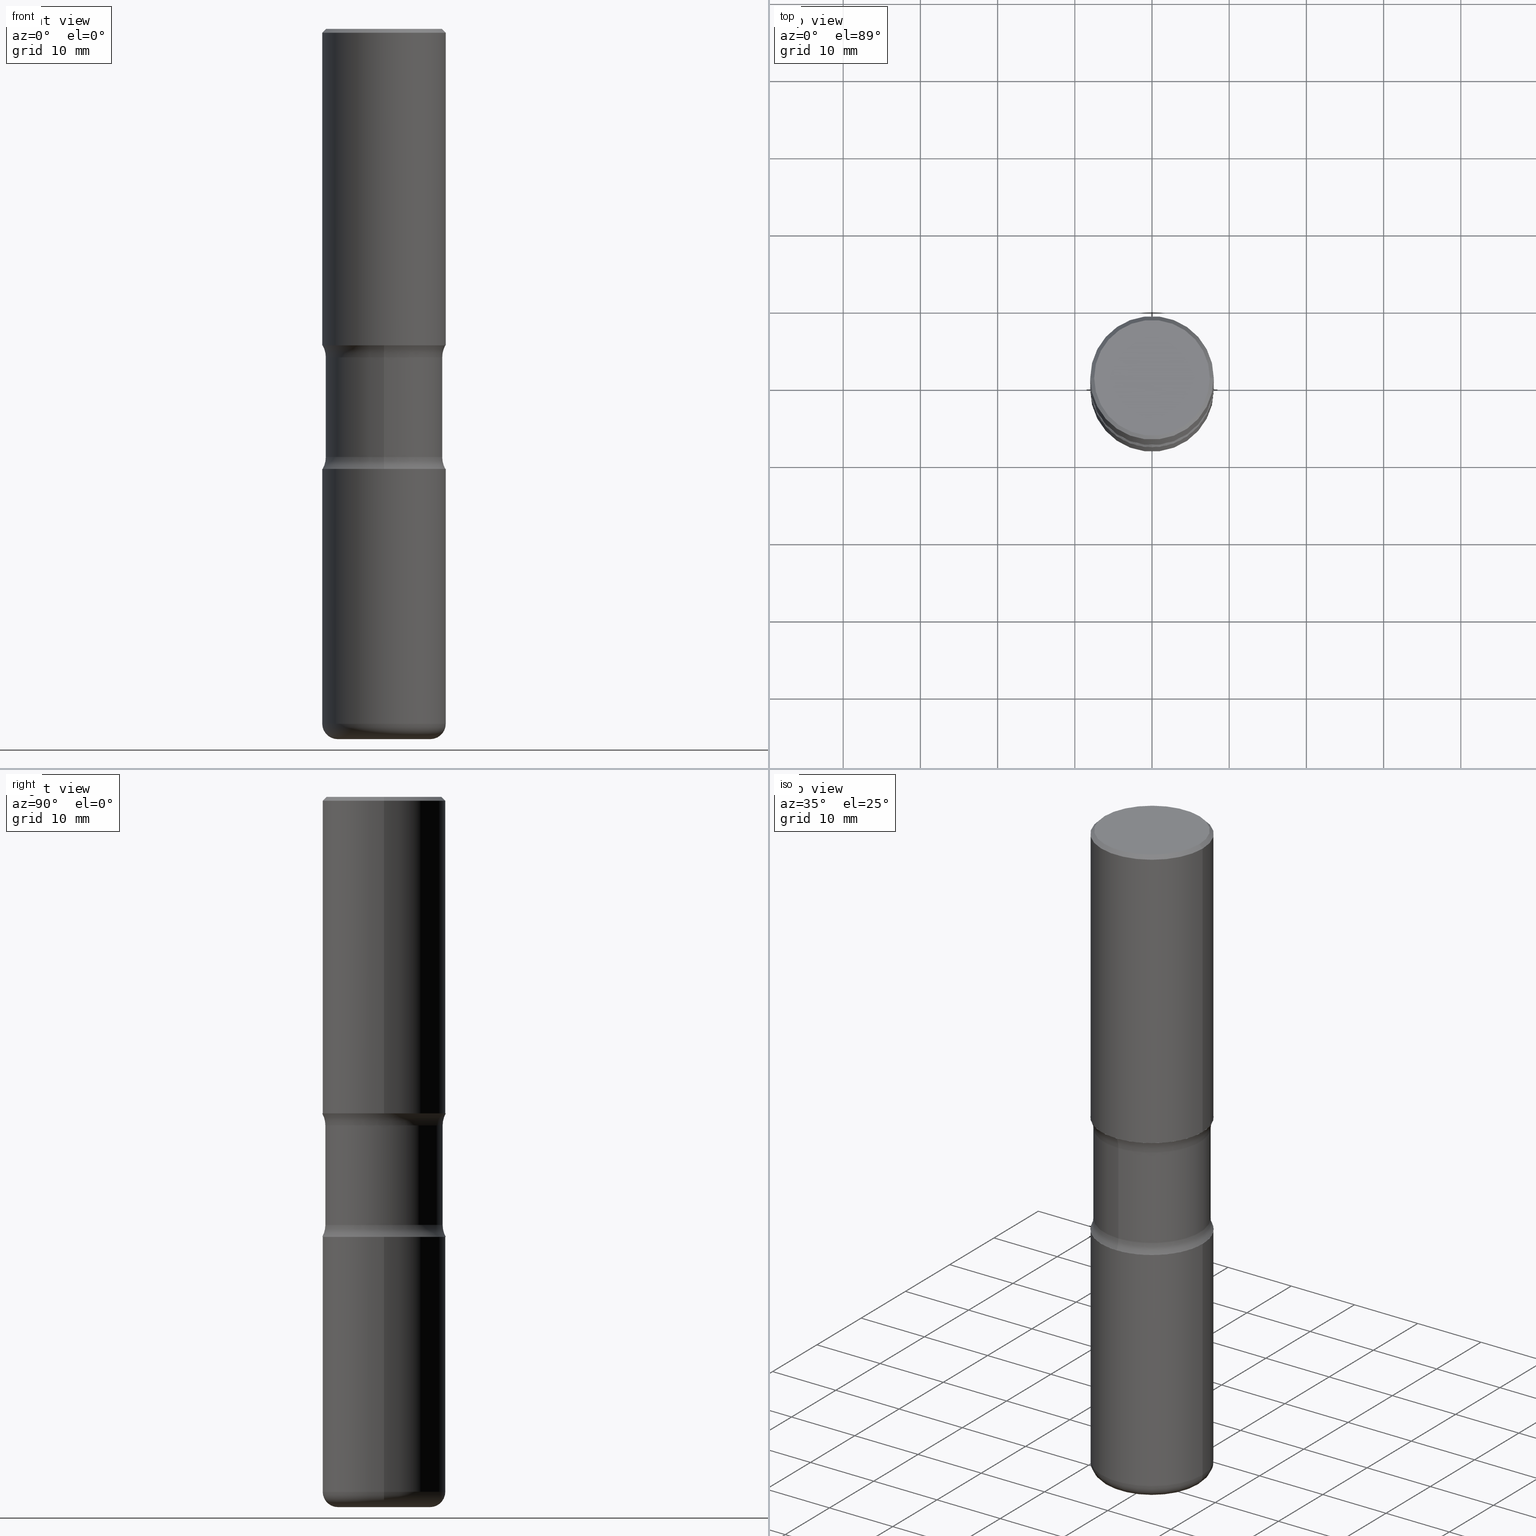
[diagram: canonical four-view strip — front | top / right | iso, engineering-drawing reading convention]
A machine part, canonical four-view strip (front | top / right | iso — engineering-drawing reading convention). The complete STEP part file that produces these views, byte-faithful:
ISO-10303-21;
HEADER;
FILE_DESCRIPTION (( 'STEP AP203' ),
    '1' );
FILE_NAME ('44981.STEP',
    '2024-03-02T04:17:54',
    ( '' ),
    ( '' ),
    'SwSTEP 2.0',
    'SolidWorks 2023',
    '' );
FILE_SCHEMA (( 'CONFIG_CONTROL_DESIGN' ));
ENDSEC;

DATA;
#1 = PRODUCT_DEFINITION ( 'UNKNOWN', '', #94, #376 ) ;
#2 = ORIENTED_EDGE ( 'NONE', *, *, #276, .T. ) ;
#3 = EDGE_LOOP ( 'NONE', ( #349, #16, #2, #527 ) ) ;
#4 = COORDINATED_UNIVERSAL_TIME_OFFSET ( 5, 0, .BEHIND. ) ;
#5 = EDGE_CURVE ( 'NONE', #399, #355, #446, .T. ) ;
#6 = ORIENTED_EDGE ( 'NONE', *, *, #459, .F. ) ;
#7 = AXIS2_PLACEMENT_3D ( 'NONE', #534, #195, #457 ) ;
#8 = CIRCLE ( 'NONE', #445, 0.3149500000000001743 ) ;
#9 = ORIENTED_EDGE ( 'NONE', *, *, #543, .F. ) ;
#10 = DIRECTION ( 'NONE',  ( 2.459321926164491276E-29, -3.471642882562086921E-15, -1.000000000000000000 ) ) ;
#11 = CARTESIAN_POINT ( 'NONE',  ( 4.890937612370289799E-31, -6.982962677686315028E-17, -0.02000000000000006981 ) ) ;
#12 = EDGE_LOOP ( 'NONE', ( #361, #110, #535, #411 ) ) ;
#13 = CARTESIAN_POINT ( 'NONE',  ( -0.3149500000000000077, 2.129454468560426573E-15, -0.02000000000000006981 ) ) ;
#14 = CARTESIAN_POINT ( 'NONE',  ( -0.3149500000000000077, 2.129454468560426573E-15, -0.02000000000000006981 ) ) ;
#15 = FACE_OUTER_BOUND ( 'NONE', #270, .T. ) ;
#16 = ORIENTED_EDGE ( 'NONE', *, *, #127, .T. ) ;
#17 = COORDINATED_UNIVERSAL_TIME_OFFSET ( 5, 0, .BEHIND. ) ;
#18 = EDGE_CURVE ( 'NONE', #180, #232, #198, .T. ) ;
#19 = AXIS2_PLACEMENT_3D ( 'NONE', #532, #147, #423 ) ;
#20 = DIRECTION ( 'NONE',  ( -2.445468806185136877E-29, 3.491481338843145188E-15, 1.000000000000000000 ) ) ;
#21 = DATE_AND_TIME ( #69, #293 ) ;
#22 = FACE_OUTER_BOUND ( 'NONE', #176, .T. ) ;
#23 = FACE_OUTER_BOUND ( 'NONE', #320, .T. ) ;
#24 = PERSON_AND_ORGANIZATION_ROLE ( 'creator' ) ;
#25 = ADVANCED_FACE ( 'NONE', ( #109 ), #286, .T. ) ;
#26 = CARTESIAN_POINT ( 'NONE',  ( -0.2949499999999999345, 2.094539655171995318E-15, 1.280553747028670770E-17 ) ) ;
#27 = SECURITY_CLASSIFICATION_LEVEL ( 'unclassified' ) ;
#28 = AXIS2_PLACEMENT_3D ( 'NONE', #250, #190, #103 ) ;
#29 = UNCERTAINTY_MEASURE_WITH_UNIT (LENGTH_MEASURE( 1.000000000000000082E-05 ), #278, 'distance_accuracy_value', 'NONE');
#30 = AXIS2_PLACEMENT_3D ( 'NONE', #177, #85, #35 ) ;
#31 = ORIENTED_EDGE ( 'NONE', *, *, #173, .F. ) ;
#32 = APPROVAL ( #344, 'UNSPECIFIED' ) ;
#33 = FACE_OUTER_BOUND ( 'NONE', #391, .T. ) ;
#34 = CYLINDRICAL_SURFACE ( 'NONE', #341, 0.3149500000000000632 ) ;
#35 = DIRECTION ( 'NONE',  ( 1.000000000000000000, -6.982962677686266711E-15, 4.883557194083112901E-29 ) ) ;
#36 = VECTOR ( 'NONE', #20, 39.37007874015748143 ) ;
#37 = AXIS2_PLACEMENT_3D ( 'NONE', #133, #401, #441 ) ;
#38 = CARTESIAN_POINT ( 'NONE',  ( 8.857732562883184381E-29, -1.264649455742375708E-14, -3.622100000000000097 ) ) ;
#39 = DIRECTION ( 'NONE',  ( 2.459321926164491276E-29, -3.471642882562086527E-15, -1.000000000000000000 ) ) ;
#40 = DIRECTION ( 'NONE',  ( -1.000000000000000000, 7.105427357600995548E-15, 0.000000000000000000 ) ) ;
#41 = DIRECTION ( 'NONE',  ( -6.982962677686267499E-15, -1.000000000000000000, 0.000000000000000000 ) ) ;
#42 = AXIS2_PLACEMENT_3D ( 'NONE', #387, #73, #209 ) ;
#43 = AXIS2_PLACEMENT_3D ( 'NONE', #475, #351, #40 ) ;
#44 = DIRECTION ( 'NONE',  ( -2.445468806185136597E-29, 3.491481338843145583E-15, 1.000000000000000000 ) ) ;
#45 = APPLICATION_CONTEXT ( 'configuration controlled 3d designs of mechanical parts and assemblies' ) ;
#46 = CARTESIAN_POINT ( 'NONE',  ( 3.947475746944049633E-29, -5.635949177160607736E-15, -1.614200000000000745 ) ) ;
#47 = EDGE_CURVE ( 'NONE', #355, #417, #544, .T. ) ;
#48 = PERSON_AND_ORGANIZATION_ROLE ( 'creator' ) ;
#49 = EDGE_CURVE ( 'NONE', #555, #170, #301, .T. ) ;
#50 = CARTESIAN_POINT ( 'NONE',  ( -0.3149500000000000632, 2.237854346276435985E-15, -1.549218606675782956E-29 ) ) ;
#51 = ORIENTED_EDGE ( 'NONE', *, *, #497, .F. ) ;
#52 = VECTOR ( 'NONE', #339, 39.37007874015748143 ) ;
#53 = DIRECTION ( 'NONE',  ( -2.445468806185136597E-29, 3.491481338843145583E-15, 1.000000000000000000 ) ) ;
#54 = CIRCLE ( 'NONE', #296, 0.2949499999999999345 ) ;
#55 = CARTESIAN_POINT ( 'NONE',  ( -0.3149500000000001743, -7.865619778000917844E-15, -2.244100000000000872 ) ) ;
#56 = DIRECTION ( 'NONE',  ( -2.445468806185136597E-29, 3.491481338843145583E-15, 1.000000000000000000 ) ) ;
#57 = EDGE_CURVE ( 'NONE', #354, #141, #425, .T. ) ;
#58 = DIRECTION ( 'NONE',  ( 1.000000000000000000, -6.982962677686265922E-15, 0.000000000000000000 ) ) ;
#59 = ORIENTED_EDGE ( 'NONE', *, *, #321, .T. ) ;
#60 = ORIENTED_EDGE ( 'NONE', *, *, #57, .T. ) ;
#61 = SHAPE_DEFINITION_REPRESENTATION ( #131, #275 ) ;
#62 = ADVANCED_FACE ( 'NONE', ( #22 ), #505, .T. ) ;
#63 = AXIS2_PLACEMENT_3D ( 'NONE', #372, #284, #531 ) ;
#64 = CIRCLE ( 'NONE', #368, 0.2989999999999999325 ) ;
#65 = DIRECTION ( 'NONE',  ( 2.459321926164491276E-29, -3.471642882562086527E-15, -1.000000000000000000 ) ) ;
#66 = PRODUCT_RELATED_PRODUCT_CATEGORY ( 'detail', '', ( #222 ) ) ;
#67 = DIRECTION ( 'NONE',  ( -1.000000000000000000, 6.982962677686266711E-15, 0.000000000000000000 ) ) ;
#68 = EDGE_CURVE ( 'NONE', #90, #417, #75, .T. ) ;
#69 = CALENDAR_DATE ( 2024, 1, 3 ) ;
#70 = DIRECTION ( 'NONE',  ( -2.445468806185136597E-29, 3.491481338843145583E-15, 1.000000000000000000 ) ) ;
#71 = EDGE_LOOP ( 'NONE', ( #440, #31, #318, #59 ) ) ;
#72 = DATE_TIME_ROLE ( 'creation_date' ) ;
#73 = DIRECTION ( 'NONE',  ( 2.459321926164491276E-29, -3.471642882562086527E-15, -1.000000000000000000 ) ) ;
#74 = CARTESIAN_POINT ( 'NONE',  ( -2.051288901333598203E-15, -0.2990000000000125335, -3.622099999999999653 ) ) ;
#75 = LINE ( 'NONE', #433, #36 ) ;
#76 = VECTOR ( 'NONE', #10, 39.37007874015748143 ) ;
#77 = ORIENTED_EDGE ( 'NONE', *, *, #252, .T. ) ;
#78 = APPROVAL_PERSON_ORGANIZATION ( #468, #32, #465 ) ;
#79 = DIRECTION ( 'NONE',  ( 6.982962677686265922E-15, 1.000000000000000000, -3.471642882562086527E-15 ) ) ;
#80 = TOROIDAL_SURFACE ( 'NONE', #524, 0.4239999999999999880, 0.1250000000000000555 ) ;
#81 = CIRCLE ( 'NONE', #412, 0.3149500000000001743 ) ;
#82 = AXIS2_PLACEMENT_3D ( 'NONE', #449, #146, #373 ) ;
#83 = ORIENTED_EDGE ( 'NONE', *, *, #193, .T. ) ;
#84 = FACE_OUTER_BOUND ( 'NONE', #71, .T. ) ;
#85 = DIRECTION ( 'NONE',  ( -2.445468806185136597E-29, 3.491481338843145583E-15, 1.000000000000000000 ) ) ;
#86 = CARTESIAN_POINT ( 'NONE',  ( 2.960776175339016781E-15, 0.4239999999999940483, -1.675299079371135758 ) ) ;
#87 = ORIENTED_EDGE ( 'NONE', *, *, #304, .T. ) ;
#88 = DIRECTION ( 'NONE',  ( 2.459321926164491276E-29, -3.471642882562086527E-15, -1.000000000000000000 ) ) ;
#89 = DIRECTION ( 'NONE',  ( 2.459321926164491276E-29, -3.471642882562086527E-15, -1.000000000000000000 ) ) ;
#90 = VERTEX_POINT ( 'NONE', #157 ) ;
#91 = ADVANCED_FACE ( 'NONE', ( #500 ), #113, .F. ) ;
#92 = CLOSED_SHELL ( 'NONE', ( #25, #528, #203, #509, #443, #215 ) ) ;
#93 = AXIS2_PLACEMENT_3D ( 'NONE', #381, #243, #58 ) ;
#94 = PRODUCT_DEFINITION_FORMATION_WITH_SPECIFIED_SOURCE ( 'ANY', '', #222, .NOT_KNOWN. ) ;
#95 = FACE_OUTER_BOUND ( 'NONE', #479, .T. ) ;
#96 = EDGE_CURVE ( 'NONE', #559, #492, #122, .T. ) ;
#97 = DIRECTION ( 'NONE',  ( 2.445468806185136597E-29, -3.491481338843145583E-15, -1.000000000000000000 ) ) ;
#98 = CARTESIAN_POINT ( 'NONE',  ( 0.000000000000000000, 0.000000000000000000, 0.000000000000000000 ) ) ;
#99 = ORIENTED_EDGE ( 'NONE', *, *, #49, .F. ) ;
#100 = ORIENTED_EDGE ( 'NONE', *, *, #18, .T. ) ;
#101 = PERSON_AND_ORGANIZATION ( #398, #369 ) ;
#102 = DIRECTION ( 'NONE',  ( -2.445468806185136597E-29, 3.491481338843145583E-15, 1.000000000000000000 ) ) ;
#103 = DIRECTION ( 'NONE',  ( -6.982962677686265922E-15, -1.000000000000000000, 3.471642882562086921E-15 ) ) ;
#104 = CLOSED_SHELL ( 'NONE', ( #385, #402, #289, #212, #353, #363 ) ) ;
#105 = VERTEX_POINT ( 'NONE', #245 ) ;
#106 = CARTESIAN_POINT ( 'NONE',  ( 8.857732562883184381E-29, -1.264649455742375708E-14, -3.622100000000000097 ) ) ;
#107 = AXIS2_PLACEMENT_3D ( 'NONE', #181, #39, #221 ) ;
#108 = DIRECTION ( 'NONE',  ( 1.000000000000000000, -6.982962677686265922E-15, 4.876176775795935232E-29 ) ) ;
#109 = FACE_OUTER_BOUND ( 'NONE', #263, .T. ) ;
#110 = ORIENTED_EDGE ( 'NONE', *, *, #5, .T. ) ;
#111 = FACE_OUTER_BOUND ( 'NONE', #3, .T. ) ;
#112 = CARTESIAN_POINT ( 'NONE',  ( 0.2949499999999999345, -2.127023677808860075E-15, 1.280553747031587399E-17 ) ) ;
#113 = PLANE ( 'NONE',  #28 ) ;
#114 = EDGE_CURVE ( 'NONE', #141, #354, #356, .T. ) ;
#115 = DIRECTION ( 'NONE',  ( 2.459321926164491276E-29, -3.471642882562086527E-15, -1.000000000000000000 ) ) ;
#116 = CLOSED_SHELL ( 'NONE', ( #508, #272, #223, #336, #265, #91, #470, #62 ) ) ;
#117 = AXIS2_PLACEMENT_3D ( 'NONE', #183, #44, #267 ) ;
#118 = APPROVAL_PERSON_ORGANIZATION ( #101, #307, #419 ) ;
#119 = FACE_OUTER_BOUND ( 'NONE', #516, .T. ) ;
#120 = DIRECTION ( 'NONE',  ( 1.000000000000000000, -6.982962677686266711E-15, 0.000000000000000000 ) ) ;
#121 = PERSON_AND_ORGANIZATION_ROLE ( 'classification_officer' ) ;
#122 = CIRCLE ( 'NONE', #165, 0.1250000000000000278 ) ;
#123 = CIRCLE ( 'NONE', #432, 0.2362500000000002098 ) ;
#124 = ORIENTED_EDGE ( 'NONE', *, *, #49, .T. ) ;
#125 = VERTEX_POINT ( 'NONE', #206 ) ;
#126 = CARTESIAN_POINT ( 'NONE',  ( 0.000000000000000000, 0.000000000000000000, 0.000000000000000000 ) ) ;
#127 = EDGE_CURVE ( 'NONE', #180, #170, #142, .T. ) ;
#128 = EDGE_LOOP ( 'NONE', ( #309, #523 ) ) ;
#129 = FACE_OUTER_BOUND ( 'NONE', #452, .T. ) ;
#130 = CIRCLE ( 'NONE', #271, 0.07869999999999970075 ) ;
#131 = PRODUCT_DEFINITION_SHAPE ( 'NONE', 'NONE',  #1 ) ;
#132 = ORIENTED_EDGE ( 'NONE', *, *, #478, .T. ) ;
#133 = CARTESIAN_POINT ( 'NONE',  ( 3.947475746944049633E-29, -5.635949177160607736E-15, -1.614200000000000745 ) ) ;
#134 = EDGE_LOOP ( 'NONE', ( #408, #145, #367, #135 ) ) ;
#135 = ORIENTED_EDGE ( 'NONE', *, *, #114, .T. ) ;
#136 = EDGE_LOOP ( 'NONE', ( #277, #421, #393, #481 ) ) ;
#137 = CONICAL_SURFACE ( 'NONE', #460, 0.3149500000000000077, 0.7853981633974477239 ) ;
#138 = AXIS2_PLACEMENT_3D ( 'NONE', #11, #97, #493 ) ;
#139 = ORIENTED_EDGE ( 'NONE', *, *, #543, .T. ) ;
#140 = CARTESIAN_POINT ( 'NONE',  ( -2.160713844398089720E-15, -0.3149500000000080013, -2.244099999999999984 ) ) ;
#141 = VERTEX_POINT ( 'NONE', #337 ) ;
#142 = LINE ( 'NONE', #239, #52 ) ;
#143 = LENGTH_MEASURE_WITH_UNIT ( LENGTH_MEASURE( 0.02539999999999999897 ), #489 );
#144 = CARTESIAN_POINT ( 'NONE',  ( 0.3149500000000001743, -7.835233272497899184E-15, -1.614200000000000745 ) ) ;
#145 = ORIENTED_EDGE ( 'NONE', *, *, #427, .F. ) ;
#146 = DIRECTION ( 'NONE',  ( 0.000000000000000000, 0.000000000000000000, 1.000000000000000000 ) ) ;
#147 = DIRECTION ( 'NONE',  ( 2.459321926164491276E-29, -3.471642882562086527E-15, -1.000000000000000000 ) ) ;
#148 = FACE_OUTER_BOUND ( 'NONE', #483, .T. ) ;
#149 = ORIENTED_EDGE ( 'NONE', *, *, #297, .F. ) ;
#150 = DIRECTION ( 'NONE',  ( -2.445468806185136597E-29, 3.491481338843145583E-15, 1.000000000000000000 ) ) ;
#151 = AXIS2_PLACEMENT_3D ( 'NONE', #46, #187, #364 ) ;
#152 = DIRECTION ( 'NONE',  ( 2.438088387897960049E-29, -3.491481338843145188E-15, -1.000000000000000000 ) ) ;
#153 = CARTESIAN_POINT ( 'NONE',  ( 0.000000000000000000, 0.000000000000000000, 0.000000000000000000 ) ) ;
#154 = CARTESIAN_POINT ( 'NONE',  ( 3.947475746944049633E-29, -5.635949177160607736E-15, -1.614200000000000745 ) ) ;
#155 = EDGE_CURVE ( 'NONE', #266, #555, #418, .T. ) ;
#156 = FACE_OUTER_BOUND ( 'NONE', #134, .T. ) ;
#157 = CARTESIAN_POINT ( 'NONE',  ( 0.3149500000000000077, -1.457099907139409361E-14, -3.543400000000000993 ) ) ;
#158 = APPROVAL_DATE_TIME ( #546, #207 ) ;
#159 = DIRECTION ( 'NONE',  ( 1.000000000000000000, -6.982962677686266711E-15, 0.000000000000000000 ) ) ;
#160 = DIRECTION ( 'NONE',  ( 1.000000000000000000, -6.982962677686266711E-15, 4.876176775795936353E-29 ) ) ;
#161 = CIRCLE ( 'NONE', #43, 0.07869999999999970075 ) ;
#162 = LINE ( 'NONE', #74, #179 ) ;
#163 = DIRECTION ( 'NONE',  ( 2.459321926164491276E-29, -3.471642882562086921E-15, -1.000000000000000000 ) ) ;
#164 = ORIENTED_EDGE ( 'NONE', *, *, #550, .T. ) ;
#165 = AXIS2_PLACEMENT_3D ( 'NONE', #540, #280, #199 ) ;
#166 = AXIS2_PLACEMENT_3D ( 'NONE', #98, #102, #108 ) ;
#167 = CC_DESIGN_SECURITY_CLASSIFICATION ( #485, ( #94 ) ) ;
#168 = EDGE_CURVE ( 'NONE', #192, #105, #383, .T. ) ;
#169 = CARTESIAN_POINT ( 'NONE',  ( 2.960776175339029797E-15, 0.4239999999999923275, -2.183000920628868968 ) ) ;
#170 = VERTEX_POINT ( 'NONE', #498 ) ;
#171 = CC_DESIGN_PERSON_AND_ORGANIZATION_ASSIGNMENT ( #213, #121, ( #485 ) ) ;
#172 = FACE_OUTER_BOUND ( 'NONE', #12, .T. ) ;
#173 = EDGE_CURVE ( 'NONE', #403, #559, #346, .T. ) ;
#174 = CARTESIAN_POINT ( 'NONE',  ( 5.337614242394174202E-29, -7.623119088468014840E-15, -2.183000920628867636 ) ) ;
#175 = CARTESIAN_POINT ( 'NONE',  ( 1.470718031460110537E-28, -4.269752447073433290E-15, -3.622100000000000541 ) ) ;
#176 = EDGE_LOOP ( 'NONE', ( #240, #235, #323, #51 ) ) ;
#177 = CARTESIAN_POINT ( 'NONE',  ( 8.665274167836413975E-29, -1.237171497605680374E-14, -3.543400000000000993 ) ) ;
#178 = DIRECTION ( 'NONE',  ( 6.982962677686264344E-15, 1.000000000000000000, -3.469564049740291192E-15 ) ) ;
#179 = VECTOR ( 'NONE', #163, 39.37007874015748143 ) ;
#180 = VERTEX_POINT ( 'NONE', #112 ) ;
#181 = CARTESIAN_POINT ( 'NONE',  ( 4.089011972234947425E-29, -5.860559604801939895E-15, -1.675299079371134425 ) ) ;
#182 = DIRECTION ( 'NONE',  ( -6.982962677686266711E-15, -1.000000000000000000, 3.491481338843145583E-15 ) ) ;
#183 = CARTESIAN_POINT ( 'NONE',  ( 8.665274167836413975E-29, -1.237171497605680374E-14, -3.543400000000000993 ) ) ;
#184 = MANIFOLD_SOLID_BREP ( 'Body-Move/Copy2[4]', #116 ) ;
#185 = DIRECTION ( 'NONE',  ( -2.445468806185136877E-29, 3.491481338843145188E-15, 1.000000000000000000 ) ) ;
#186 = ORIENTED_EDGE ( 'NONE', *, *, #537, .T. ) ;
#187 = DIRECTION ( 'NONE',  ( 2.459321926164490715E-29, -3.471642882562086921E-15, -1.000000000000000000 ) ) ;
#188 = DIRECTION ( 'NONE',  ( 6.982962677686265922E-15, 1.000000000000000000, -3.471642882562086527E-15 ) ) ;
#189 = AXIS2_PLACEMENT_3D ( 'NONE', #220, #89, #178 ) ;
#190 = DIRECTION ( 'NONE',  ( -2.459321926164490715E-29, 3.471642882562086921E-15, 1.000000000000000000 ) ) ;
#191 = PERSON_AND_ORGANIZATION ( #398, #369 ) ;
#192 = VERTEX_POINT ( 'NONE', #541 ) ;
#193 = EDGE_CURVE ( 'NONE', #313, #266, #319, .T. ) ;
#194 = CARTESIAN_POINT ( 'NONE',  ( 5.487876547960068115E-29, -7.835233272497907073E-15, -2.244100000000000872 ) ) ;
#195 = DIRECTION ( 'NONE',  ( 2.459321926164491276E-29, -3.471642882562086527E-15, -1.000000000000000000 ) ) ;
#196 = ORIENTED_EDGE ( 'NONE', *, *, #96, .T. ) ;
#197 = CARTESIAN_POINT ( 'NONE',  ( 0.2362500000000002098, -1.429621949002714027E-14, -3.622100000000000097 ) ) ;
#198 = CIRCLE ( 'NONE', #502, 0.2949499999999999345 ) ;
#199 = DIRECTION ( 'NONE',  ( 6.860497997771532351E-15, 1.000000000000000000, 0.000000000000000000 ) ) ;
#200 = EDGE_CURVE ( 'NONE', #232, #555, #326, .T. ) ;
#201 = AXIS2_PLACEMENT_3D ( 'NONE', #375, #536, #416 ) ;
#202 = CALENDAR_DATE ( 2024, 1, 3 ) ;
#203 = ADVANCED_FACE ( 'NONE', ( #148 ), #137, .T. ) ;
#204 = CARTESIAN_POINT ( 'NONE',  ( 3.938749666669054073E-29, -5.648445420772047662E-15, -1.614200000000000745 ) ) ;
#205 = FACE_OUTER_BOUND ( 'NONE', #448, .T. ) ;
#206 = CARTESIAN_POINT ( 'NONE',  ( -2.106001372865876107E-15, -0.2990000000000057612, -1.675299079371133315 ) ) ;
#207 = APPROVAL ( #389, 'UNSPECIFIED' ) ;
#208 = CALENDAR_DATE ( 2024, 1, 3 ) ;
#209 = DIRECTION ( 'NONE',  ( 6.982962677686266711E-15, 1.000000000000000000, -3.654646145370253678E-15 ) ) ;
#210 = PERSON_AND_ORGANIZATION ( #398, #369 ) ;
#211 = DIRECTION ( 'NONE',  ( 6.982962677686264344E-15, 1.000000000000000000, -3.469564049740290403E-15 ) ) ;
#212 = ADVANCED_FACE ( 'NONE', ( #119 ), #217, .T. ) ;
#213 = PERSON_AND_ORGANIZATION ( #398, #369 ) ;
#214 = AXIS2_PLACEMENT_3D ( 'NONE', #494, #152, #362 ) ;
#215 = ADVANCED_FACE ( 'NONE', ( #23 ), #34, .T. ) ;
#216 = FACE_OUTER_BOUND ( 'NONE', #371, .T. ) ;
#217 = TOROIDAL_SURFACE ( 'NONE', #282, 0.2362500000000001821, 0.07869999999999965912 ) ;
#218 = CIRCLE ( 'NONE', #302, 0.2989999999999998770 ) ;
#219 = CARTESIAN_POINT ( 'NONE',  ( 8.665274167836413975E-29, -1.237171497605680374E-14, -3.543400000000000993 ) ) ;
#220 = CARTESIAN_POINT ( 'NONE',  ( 5.487876547960068115E-29, -7.835233272497907073E-15, -2.244100000000000872 ) ) ;
#221 = DIRECTION ( 'NONE',  ( 6.982962677686266711E-15, 1.000000000000000000, -3.654646145370253678E-15 ) ) ;
#222 = PRODUCT ( '44981', '44981', '', ( #422 ) ) ;
#223 = ADVANCED_FACE ( 'NONE', ( #33 ), #80, .F. ) ;
#224 = CARTESIAN_POINT ( 'NONE',  ( 5.338460655271330823E-29, -7.621906977053098648E-15, -2.183000920628867636 ) ) ;
#225 = AXIS2_PLACEMENT_3D ( 'NONE', #335, #70, #298 ) ;
#226 = CARTESIAN_POINT ( 'NONE',  ( 0.2362500000000001821, -1.402143990866018536E-14, -3.543400000000000993 ) ) ;
#227 = CIRCLE ( 'NONE', #461, 0.3149500000000000077 ) ;
#228 = CIRCLE ( 'NONE', #437, 0.1250000000000000555 ) ;
#229 = ORIENTED_EDGE ( 'NONE', *, *, #321, .F. ) ;
#230 = CYLINDRICAL_SURFACE ( 'NONE', #474, 0.2989999999999998770 ) ;
#231 = LINE ( 'NONE', #306, #506 ) ;
#232 = VERTEX_POINT ( 'NONE', #26 ) ;
#233 =( NAMED_UNIT ( * ) PLANE_ANGLE_UNIT ( ) SI_UNIT ( $, .RADIAN. ) );
#234 = EDGE_CURVE ( 'NONE', #125, #492, #162, .T. ) ;
#235 = ORIENTED_EDGE ( 'NONE', *, *, #450, .T. ) ;
#236 = CC_DESIGN_APPROVAL ( #307, ( #1 ) ) ;
#237 = CARTESIAN_POINT ( 'NONE',  ( -0.3149500000000001743, -6.150350556922980531E-16, -1.614200000000000745 ) ) ;
#238 = AXIS2_PLACEMENT_3D ( 'NONE', #429, #292, #188 ) ;
#239 = CARTESIAN_POINT ( 'NONE',  ( 0.3149500000000000077, -2.230543471175007450E-15, -0.02000000000000006981 ) ) ;
#240 = ORIENTED_EDGE ( 'NONE', *, *, #234, .F. ) ;
#241 =( NAMED_UNIT ( * ) SI_UNIT ( $, .STERADIAN. ) SOLID_ANGLE_UNIT ( ) );
#242 = APPROVAL_STATUS ( 'not_yet_approved' ) ;
#243 = DIRECTION ( 'NONE',  ( -2.445468806185136597E-29, 3.491481338843145583E-15, 1.000000000000000000 ) ) ;
#244 = VERTEX_POINT ( 'NONE', #345 ) ;
#245 = CARTESIAN_POINT ( 'NONE',  ( 2.087905840628246458E-15, 0.2989999999999923275, -2.183000920628868524 ) ) ;
#246 = ORIENTED_EDGE ( 'NONE', *, *, #173, .T. ) ;
#247 = DIRECTION ( 'NONE',  ( 1.000000000000000000, -6.982962677686266711E-15, 4.876176775795936353E-29 ) ) ;
#248 = VECTOR ( 'NONE', #414, 39.37007874015748143 ) ;
#249 = CALENDAR_DATE ( 2024, 1, 3 ) ;
#250 = CARTESIAN_POINT ( 'NONE',  ( 6.847118732139449888E-29, -5.888721101492358941E-15, -2.244100000000001316 ) ) ;
#251 = DIRECTION ( 'NONE',  ( -6.982962677686265133E-15, -1.000000000000000000, 0.000000000000000000 ) ) ;
#252 = EDGE_CURVE ( 'NONE', #125, #354, #228, .T. ) ;
#253 = DIRECTION ( 'NONE',  ( 2.459321926164491276E-29, -3.471642882562086527E-15, -1.000000000000000000 ) ) ;
#254 = DATE_AND_TIME ( #249, #259 ) ;
#255 = CC_DESIGN_DATE_AND_TIME_ASSIGNMENT ( #21, #347, ( #485 ) ) ;
#256 = AXIS2_PLACEMENT_3D ( 'NONE', #106, #53, #529 ) ;
#257 = ORIENTED_EDGE ( 'NONE', *, *, #488, .F. ) ;
#258 = EDGE_CURVE ( 'NONE', #403, #105, #539, .T. ) ;
#259 = LOCAL_TIME ( 23, 17, 54.00000000000000000, #386 ) ;
#260 = ORIENTED_EDGE ( 'NONE', *, *, #304, .F. ) ;
#261 = DIRECTION ( 'NONE',  ( 6.982962677686265922E-15, 1.000000000000000000, -3.471642882562086527E-15 ) ) ;
#262 = AXIS2_PLACEMENT_3D ( 'NONE', #153, #288, #247 ) ;
#263 = EDGE_LOOP ( 'NONE', ( #83, #507, #400, #260 ) ) ;
#264 = CYLINDRICAL_SURFACE ( 'NONE', #553, 0.3149500000000001743 ) ;
#265 = ADVANCED_FACE ( 'NONE', ( #299 ), #406, .F. ) ;
#266 = VERTEX_POINT ( 'NONE', #237 ) ;
#267 = DIRECTION ( 'NONE',  ( 1.000000000000000000, -6.982962677686265922E-15, 0.000000000000000000 ) ) ;
#268 = ORIENTED_EDGE ( 'NONE', *, *, #310, .F. ) ;
#269 = DIRECTION ( 'NONE',  ( 2.459321926164491276E-29, -3.471642882562086527E-15, -1.000000000000000000 ) ) ;
#270 = EDGE_LOOP ( 'NONE', ( #379, #327 ) ) ;
#271 = AXIS2_PLACEMENT_3D ( 'NONE', #226, #182, #274 ) ;
#272 = ADVANCED_FACE ( 'NONE', ( #205 ), #467, .F. ) ;
#273 = APPROVAL_DATE_TIME ( #380, #307 ) ;
#274 = DIRECTION ( 'NONE',  ( 1.000000000000000000, -6.982962677686271444E-15, 0.000000000000000000 ) ) ;
#275 = ADVANCED_BREP_SHAPE_REPRESENTATION ( '44981', ( #382, #378, #184, #82 ), #331 ) ;
#276 = EDGE_CURVE ( 'NONE', #170, #555, #227, .T. ) ;
#277 = ORIENTED_EDGE ( 'NONE', *, *, #5, .F. ) ;
#278 =( CONVERSION_BASED_UNIT ( 'INCH', #143 ) LENGTH_UNIT ( ) NAMED_UNIT ( #512 ) );
#279 = ORIENTED_EDGE ( 'NONE', *, *, #297, .T. ) ;
#280 = DIRECTION ( 'NONE',  ( 1.000000000000000000, -6.860497997771530774E-15, 4.841041830643989638E-29 ) ) ;
#281 = ORIENTED_EDGE ( 'NONE', *, *, #550, .F. ) ;
#282 = AXIS2_PLACEMENT_3D ( 'NONE', #388, #462, #390 ) ;
#283 = CIRCLE ( 'NONE', #348, 0.1250000000000000555 ) ;
#284 = DIRECTION ( 'NONE',  ( -2.445468806185136597E-29, 3.491481338843145583E-15, 1.000000000000000000 ) ) ;
#285 = PLANE ( 'NONE',  #201 ) ;
#286 = CYLINDRICAL_SURFACE ( 'NONE', #262, 0.3149500000000000632 ) ;
#287 = ORIENTED_EDGE ( 'NONE', *, *, #537, .F. ) ;
#288 = DIRECTION ( 'NONE',  ( -2.445468806185136597E-29, 3.491481338843145583E-15, 1.000000000000000000 ) ) ;
#289 = ADVANCED_FACE ( 'NONE', ( #352 ), #360, .T. ) ;
#290 = DIRECTION ( 'NONE',  ( 6.982962677686264344E-15, 1.000000000000000000, -3.469564049740291192E-15 ) ) ;
#291 = COORDINATED_UNIVERSAL_TIME_OFFSET ( 5, 0, .BEHIND. ) ;
#292 = DIRECTION ( 'NONE',  ( 2.459321926164491276E-29, -3.471642882562086527E-15, -1.000000000000000000 ) ) ;
#293 = LOCAL_TIME ( 23, 17, 54.00000000000000000, #463 ) ;
#294 = AXIS2_PLACEMENT_3D ( 'NONE', #204, #65, #211 ) ;
#295 = CARTESIAN_POINT ( 'NONE',  ( -2.908851151055088557E-15, -0.4240000000000059277, -1.675299079371132871 ) ) ;
#296 = AXIS2_PLACEMENT_3D ( 'NONE', #334, #447, #486 ) ;
#297 = EDGE_CURVE ( 'NONE', #559, #403, #538, .T. ) ;
#298 = DIRECTION ( 'NONE',  ( 1.000000000000000000, -6.982962677686265922E-15, 0.000000000000000000 ) ) ;
#299 = FACE_OUTER_BOUND ( 'NONE', #128, .T. ) ;
#300 = DIRECTION ( 'NONE',  ( -2.445468806185136597E-29, 3.491481338843145583E-15, 1.000000000000000000 ) ) ;
#301 = CIRCLE ( 'NONE', #311, 0.3149500000000000077 ) ;
#302 = AXIS2_PLACEMENT_3D ( 'NONE', #471, #407, #314 ) ;
#303 = EDGE_CURVE ( 'NONE', #192, #141, #283, .T. ) ;
#304 = EDGE_CURVE ( 'NONE', #313, #170, #231, .T. ) ;
#305 = CARTESIAN_POINT ( 'NONE',  ( -0.3149500000000000077, -1.013386062978036776E-14, -3.543400000000000993 ) ) ;
#306 = CARTESIAN_POINT ( 'NONE',  ( 0.3149500000000000632, -2.199284095337290265E-15, 1.535751875536930410E-29 ) ) ;
#307 = APPROVAL ( #242, 'UNSPECIFIED' ) ;
#308 = LOCAL_TIME ( 23, 17, 54.00000000000000000, #17 ) ;
#309 = ORIENTED_EDGE ( 'NONE', *, *, #114, .F. ) ;
#310 = EDGE_CURVE ( 'NONE', #533, #90, #130, .T. ) ;
#311 = AXIS2_PLACEMENT_3D ( 'NONE', #466, #424, #120 ) ;
#312 = AXIS2_PLACEMENT_3D ( 'NONE', #330, #253, #79 ) ;
#313 = VERTEX_POINT ( 'NONE', #144 ) ;
#314 = DIRECTION ( 'NONE',  ( 6.982962677686266711E-15, 1.000000000000000000, -3.654646145370253678E-15 ) ) ;
#315 = ORIENTED_EDGE ( 'NONE', *, *, #168, .F. ) ;
#316 = DIRECTION ( 'NONE',  ( 6.982962677686266711E-15, 1.000000000000000000, -3.654646145370252890E-15 ) ) ;
#317 = ORIENTED_EDGE ( 'NONE', *, *, #427, .T. ) ;
#318 = ORIENTED_EDGE ( 'NONE', *, *, #258, .T. ) ;
#319 = CIRCLE ( 'NONE', #63, 0.3149500000000001743 ) ;
#320 = EDGE_LOOP ( 'NONE', ( #409, #164, #87, #99 ) ) ;
#321 = EDGE_CURVE ( 'NONE', #105, #492, #455, .T. ) ;
#322 = CIRCLE ( 'NONE', #107, 0.2989999999999998770 ) ;
#323 = ORIENTED_EDGE ( 'NONE', *, *, #168, .T. ) ;
#324 = APPLICATION_PROTOCOL_DEFINITION ( 'international standard', 'config_control_design', 1994, #45 ) ;
#325 = CARTESIAN_POINT ( 'NONE',  ( -0.3149500000000001743, 2.237854346276436774E-15, -1.549218606675783237E-29 ) ) ;
#326 = LINE ( 'NONE', #13, #395 ) ;
#327 = ORIENTED_EDGE ( 'NONE', *, *, #47, .T. ) ;
#328 = APPLICATION_PROTOCOL_DEFINITION ( 'international standard', 'config_control_design', 1994, #359 ) ;
#329 = PLANE ( 'NONE',  #214 ) ;
#330 = CARTESIAN_POINT ( 'NONE',  ( 5.338460655271330823E-29, -7.621906977053098648E-15, -2.183000920628867636 ) ) ;
#331 =( GEOMETRIC_REPRESENTATION_CONTEXT ( 3 ) GLOBAL_UNCERTAINTY_ASSIGNED_CONTEXT ( ( #29 ) ) GLOBAL_UNIT_ASSIGNED_CONTEXT ( ( #278, #233, #241 ) ) REPRESENTATION_CONTEXT ( 'NONE', 'WORKASPACE' ) );
#332 = CARTESIAN_POINT ( 'NONE',  ( 4.890937612370289799E-31, -6.982962677686315028E-17, -0.02000000000000006981 ) ) ;
#333 = EDGE_LOOP ( 'NONE', ( #186, #100 ) ) ;
#334 = CARTESIAN_POINT ( 'NONE',  ( -3.131554243005659264E-46, 4.471029511141341874E-32, 1.280553747030123384E-17 ) ) ;
#335 = CARTESIAN_POINT ( 'NONE',  ( 5.487876547960068115E-29, -7.835233272497907073E-15, -2.244100000000000872 ) ) ;
#336 = ADVANCED_FACE ( 'NONE', ( #156 ), #503, .F. ) ;
#337 = CARTESIAN_POINT ( 'NONE',  ( 2.199284095337329708E-15, 0.3149499999999945676, -1.614200000000001856 ) ) ;
#338 = PERSON_AND_ORGANIZATION_ROLE ( 'design_owner' ) ;
#339 = DIRECTION ( 'NONE',  ( 0.7071067811865471286, -7.319954787623254468E-15, -0.7071067811865479058 ) ) ;
#340 = EDGE_CURVE ( 'NONE', #417, #355, #405, .T. ) ;
#341 = AXIS2_PLACEMENT_3D ( 'NONE', #510, #434, #160 ) ;
#342 = CIRCLE ( 'NONE', #256, 0.2362500000000002098 ) ;
#343 = DIRECTION ( 'NONE',  ( 1.000000000000000000, -6.860497997771530774E-15, 4.841041830643989638E-29 ) ) ;
#344 = APPROVAL_STATUS ( 'not_yet_approved' ) ;
#345 = CARTESIAN_POINT ( 'NONE',  ( -0.2362500000000002098, -1.055084898698544382E-14, -3.622100000000000097 ) ) ;
#346 = CIRCLE ( 'NONE', #552, 0.3149500000000001743 ) ;
#347 = DATE_TIME_ROLE ( 'classification_date' ) ;
#348 = AXIS2_PLACEMENT_3D ( 'NONE', #86, #442, #41 ) ;
#349 = ORIENTED_EDGE ( 'NONE', *, *, #18, .F. ) ;
#350 = DIRECTION ( 'NONE',  ( -1.000000000000000000, 6.982962677686265922E-15, -4.883557194083112340E-29 ) ) ;
#351 = DIRECTION ( 'NONE',  ( 7.105427357601001859E-15, 1.000000000000000000, -3.491481338843145583E-15 ) ) ;
#352 = FACE_OUTER_BOUND ( 'NONE', #444, .T. ) ;
#353 = ADVANCED_FACE ( 'NONE', ( #490 ), #420, .T. ) ;
#354 = VERTEX_POINT ( 'NONE', #453 ) ;
#355 = VERTEX_POINT ( 'NONE', #55 ) ;
#356 = CIRCLE ( 'NONE', #7, 0.3149500000000002298 ) ;
#357 = CIRCLE ( 'NONE', #117, 0.3149500000000001743 ) ;
#358 = ORIENTED_EDGE ( 'NONE', *, *, #450, .F. ) ;
#359 = APPLICATION_CONTEXT ( 'configuration controlled 3d designs of mechanical parts and assemblies' ) ;
#360 = PLANE ( 'NONE',  #484 ) ;
#361 = ORIENTED_EDGE ( 'NONE', *, *, #488, .T. ) ;
#362 = DIRECTION ( 'NONE',  ( -1.000000000000000000, 6.982962677686265922E-15, -4.876176775795935793E-29 ) ) ;
#363 = ADVANCED_FACE ( 'NONE', ( #15 ), #329, .F. ) ;
#364 = DIRECTION ( 'NONE',  ( 6.982962677686265922E-15, 1.000000000000000000, -3.471642882562086921E-15 ) ) ;
#365 = EDGE_LOOP ( 'NONE', ( #246, #279 ) ) ;
#366 = FACE_OUTER_BOUND ( 'NONE', #333, .T. ) ;
#367 = ORIENTED_EDGE ( 'NONE', *, *, #303, .T. ) ;
#368 = AXIS2_PLACEMENT_3D ( 'NONE', #174, #560, #316 ) ;
#369 = ORGANIZATION ( 'UNSPECIFIED', 'UNSPECIFIED', '' ) ;
#370 = DIRECTION ( 'NONE',  ( 1.000000000000000000, -6.982962677686265922E-15, 0.000000000000000000 ) ) ;
#371 = EDGE_LOOP ( 'NONE', ( #487, #281 ) ) ;
#372 = CARTESIAN_POINT ( 'NONE',  ( 3.947475746944049633E-29, -5.635949177160607736E-15, -1.614200000000000745 ) ) ;
#373 = DIRECTION ( 'NONE',  ( 1.000000000000000000, 0.000000000000000000, 0.000000000000000000 ) ) ;
#374 = DIRECTION ( 'NONE',  ( -0.7071067811865471286, 2.468850131082252722E-15, -0.7071067811865479058 ) ) ;
#375 = CARTESIAN_POINT ( 'NONE',  ( 2.059624841783564063E-15, 0.2949499999999999345, -1.023409652156634942E-15 ) ) ;
#376 = DESIGN_CONTEXT ( 'detailed design', #359, 'design' ) ;
#377 = AXIS2_PLACEMENT_3D ( 'NONE', #224, #88, #261 ) ;
#378 = MANIFOLD_SOLID_BREP ( 'Body-Move/Copy2[2]', #92 ) ;
#379 = ORIENTED_EDGE ( 'NONE', *, *, #340, .T. ) ;
#380 = DATE_AND_TIME ( #202, #308 ) ;
#381 = CARTESIAN_POINT ( 'NONE',  ( 5.487876547960068115E-29, -7.835233272497907073E-15, -2.244100000000000872 ) ) ;
#382 = MANIFOLD_SOLID_BREP ( 'Body-Move/Copy2[1]', #104 ) ;
#383 = LINE ( 'NONE', #501, #76 ) ;
#384 = PERSON_AND_ORGANIZATION ( #398, #369 ) ;
#385 = ADVANCED_FACE ( 'NONE', ( #172 ), #264, .T. ) ;
#386 = COORDINATED_UNIVERSAL_TIME_OFFSET ( 5, 0, .BEHIND. ) ;
#387 = CARTESIAN_POINT ( 'NONE',  ( 8.876822162214736083E-29, -1.261915716466845936E-14, -3.622100000000000541 ) ) ;
#388 = CARTESIAN_POINT ( 'NONE',  ( 8.665274167836413975E-29, -1.237171497605680374E-14, -3.543400000000000993 ) ) ;
#389 = APPROVAL_STATUS ( 'not_yet_approved' ) ;
#390 = DIRECTION ( 'NONE',  ( 1.000000000000000000, -6.982962677686266711E-15, 4.883557194083112901E-29 ) ) ;
#391 = EDGE_LOOP ( 'NONE', ( #358, #77, #60, #415 ) ) ;
#392 = PERSON_AND_ORGANIZATION_ROLE ( 'design_supplier' ) ;
#393 = ORIENTED_EDGE ( 'NONE', *, *, #68, .T. ) ;
#394 = DIRECTION ( 'NONE',  ( 6.860497997771530774E-15, 1.000000000000000000, 0.000000000000000000 ) ) ;
#395 = VECTOR ( 'NONE', #374, 39.37007874015748143 ) ;
#396 = CONICAL_SURFACE ( 'NONE', #138, 0.3149500000000000077, 0.7853981633974477239 ) ;
#397 = PLANE ( 'NONE',  #37 ) ;
#398 = PERSON ( 'UNSPECIFIED', 'UNSPECIFIED', 'UNSPECIFIED', ('UNSPECIFIED'), ('UNSPECIFIED'), ('UNSPECIFIED') ) ;
#399 = VERTEX_POINT ( 'NONE', #305 ) ;
#400 = ORIENTED_EDGE ( 'NONE', *, *, #276, .F. ) ;
#401 = DIRECTION ( 'NONE',  ( -2.438088387897960049E-29, 3.491481338843145188E-15, 1.000000000000000000 ) ) ;
#402 = ADVANCED_FACE ( 'NONE', ( #95 ), #515, .T. ) ;
#403 = VERTEX_POINT ( 'NONE', #517 ) ;
#404 = CARTESIAN_POINT ( 'NONE',  ( -2.106001372865861908E-15, -0.2990000000000075375, -2.183000920628866304 ) ) ;
#405 = CIRCLE ( 'NONE', #93, 0.3149500000000001743 ) ;
#406 = PLANE ( 'NONE',  #151 ) ;
#407 = DIRECTION ( 'NONE',  ( 2.459321926164491276E-29, -3.471642882562086527E-15, -1.000000000000000000 ) ) ;
#408 = ORIENTED_EDGE ( 'NONE', *, *, #252, .F. ) ;
#409 = ORIENTED_EDGE ( 'NONE', *, *, #155, .F. ) ;
#410 = ORIENTED_EDGE ( 'NONE', *, *, #200, .T. ) ;
#411 = ORIENTED_EDGE ( 'NONE', *, *, #68, .F. ) ;
#412 = AXIS2_PLACEMENT_3D ( 'NONE', #154, #150, #370 ) ;
#413 = LOCAL_TIME ( 23, 17, 54.00000000000000000, #4 ) ;
#414 = DIRECTION ( 'NONE',  ( -2.445468806185136877E-29, 3.491481338843145188E-15, 1.000000000000000000 ) ) ;
#415 = ORIENTED_EDGE ( 'NONE', *, *, #303, .F. ) ;
#416 = DIRECTION ( 'NONE',  ( -1.000000000000000000, 6.982962677686265922E-15, -4.876176775795935793E-29 ) ) ;
#417 = VERTEX_POINT ( 'NONE', #439 ) ;
#418 = LINE ( 'NONE', #50, #248 ) ;
#419 = APPROVAL_ROLE ( '' ) ;
#420 = CYLINDRICAL_SURFACE ( 'NONE', #166, 0.3149500000000001743 ) ;
#421 = ORIENTED_EDGE ( 'NONE', *, *, #436, .T. ) ;
#422 = MECHANICAL_CONTEXT ( 'NONE', #45, 'mechanical' ) ;
#423 = DIRECTION ( 'NONE',  ( 6.982962677686266711E-15, 1.000000000000000000, -3.654646145370252890E-15 ) ) ;
#424 = DIRECTION ( 'NONE',  ( -2.445468806185136597E-29, 3.491481338843145583E-15, 1.000000000000000000 ) ) ;
#425 = CIRCLE ( 'NONE', #294, 0.3149500000000002298 ) ;
#426 = AXIS2_PLACEMENT_3D ( 'NONE', #169, #350, #251 ) ;
#427 = EDGE_CURVE ( 'NONE', #192, #125, #218, .T. ) ;
#428 = PERSON_AND_ORGANIZATION ( #398, #369 ) ;
#429 = CARTESIAN_POINT ( 'NONE',  ( 4.049200658180612693E-29, -5.917571672447023777E-15, -1.675299079371134425 ) ) ;
#430 = DIRECTION ( 'NONE',  ( 2.459321926164491276E-29, -3.471642882562086527E-15, -1.000000000000000000 ) ) ;
#431 = DATE_AND_TIME ( #525, #413 ) ;
#432 = AXIS2_PLACEMENT_3D ( 'NONE', #38, #519, #556 ) ;
#433 = CARTESIAN_POINT ( 'NONE',  ( 0.3149500000000001743, -2.199284095337290660E-15, 1.535751875536930690E-29 ) ) ;
#434 = DIRECTION ( 'NONE',  ( -2.445468806185136597E-29, 3.491481338843145583E-15, 1.000000000000000000 ) ) ;
#435 = APPROVAL_PERSON_ORGANIZATION ( #210, #207, #542 ) ;
#436 = EDGE_CURVE ( 'NONE', #399, #90, #357, .T. ) ;
#437 = AXIS2_PLACEMENT_3D ( 'NONE', #295, #343, #394 ) ;
#438 = CC_DESIGN_APPROVAL ( #32, ( #94 ) ) ;
#439 = CARTESIAN_POINT ( 'NONE',  ( 0.3149500000000001743, -1.003451736783519694E-14, -2.244100000000000872 ) ) ;
#440 = ORIENTED_EDGE ( 'NONE', *, *, #96, .F. ) ;
#441 = DIRECTION ( 'NONE',  ( 1.000000000000000000, -6.982962677686265922E-15, 4.876176775795935793E-29 ) ) ;
#442 = DIRECTION ( 'NONE',  ( -1.000000000000000000, 6.982962677686265922E-15, -4.883557194083112340E-29 ) ) ;
#443 = ADVANCED_FACE ( 'NONE', ( #216 ), #397, .F. ) ;
#444 = EDGE_LOOP ( 'NONE', ( #451, #9 ) ) ;
#445 = AXIS2_PLACEMENT_3D ( 'NONE', #219, #511, #558 ) ;
#446 = LINE ( 'NONE', #325, #473 ) ;
#447 = DIRECTION ( 'NONE',  ( -2.445468806185136597E-29, 3.491481338843145583E-15, 1.000000000000000000 ) ) ;
#448 = EDGE_LOOP ( 'NONE', ( #149, #196, #551, #530 ) ) ;
#449 = CARTESIAN_POINT ( 'NONE',  ( 0.000000000000000000, 0.000000000000000000, 0.000000000000000000 ) ) ;
#450 = EDGE_CURVE ( 'NONE', #125, #192, #322, .T. ) ;
#451 = ORIENTED_EDGE ( 'NONE', *, *, #478, .F. ) ;
#452 = EDGE_LOOP ( 'NONE', ( #317, #518, #229, #315 ) ) ;
#453 = CARTESIAN_POINT ( 'NONE',  ( -2.160713844398106286E-15, -0.3149500000000059474, -1.614199999999999635 ) ) ;
#454 = CARTESIAN_POINT ( 'NONE',  ( -3.131554243005659264E-46, 4.471029511141341874E-32, 1.280553747030123384E-17 ) ) ;
#455 = CIRCLE ( 'NONE', #19, 0.2989999999999999325 ) ;
#456 = CARTESIAN_POINT ( 'NONE',  ( 4.890937612370289799E-31, -6.982962677686315028E-17, -0.02000000000000006981 ) ) ;
#457 = DIRECTION ( 'NONE',  ( 6.982962677686264344E-15, 1.000000000000000000, -3.469564049740290403E-15 ) ) ;
#458 = DIRECTION ( 'NONE',  ( 6.982962677686266711E-15, 1.000000000000000000, -3.654646145370253678E-15 ) ) ;
#459 = EDGE_CURVE ( 'NONE', #244, #399, #161, .T. ) ;
#460 = AXIS2_PLACEMENT_3D ( 'NONE', #332, #496, #67 ) ;
#461 = AXIS2_PLACEMENT_3D ( 'NONE', #456, #300, #159 ) ;
#462 = DIRECTION ( 'NONE',  ( -2.445468806185136597E-29, 3.491481338843145583E-15, 1.000000000000000000 ) ) ;
#463 = COORDINATED_UNIVERSAL_TIME_OFFSET ( 5, 0, .BEHIND. ) ;
#464 = CC_DESIGN_PERSON_AND_ORGANIZATION_ASSIGNMENT ( #499, #48, ( #1 ) ) ;
#465 = APPROVAL_ROLE ( '' ) ;
#466 = CARTESIAN_POINT ( 'NONE',  ( 4.890937612370289799E-31, -6.982962677686315028E-17, -0.02000000000000006981 ) ) ;
#467 = TOROIDAL_SURFACE ( 'NONE', #312, 0.4239999999999999880, 0.1250000000000000278 ) ;
#468 = PERSON_AND_ORGANIZATION ( #398, #369 ) ;
#469 = CC_DESIGN_PERSON_AND_ORGANIZATION_ASSIGNMENT ( #428, #392, ( #94 ) ) ;
#470 = ADVANCED_FACE ( 'NONE', ( #84 ), #526, .F. ) ;
#471 = CARTESIAN_POINT ( 'NONE',  ( 4.089011972234947425E-29, -5.860559604801939895E-15, -1.675299079371134425 ) ) ;
#472 = CC_DESIGN_APPROVAL ( #207, ( #485 ) ) ;
#473 = VECTOR ( 'NONE', #491, 39.37007874015748143 ) ;
#474 = AXIS2_PLACEMENT_3D ( 'NONE', #480, #269, #458 ) ;
#475 = CARTESIAN_POINT ( 'NONE',  ( -0.2362500000000001821, -1.069305776282356497E-14, -3.543400000000000993 ) ) ;
#476 = DIRECTION ( 'NONE',  ( -1.000000000000000000, 6.982962677686265922E-15, -4.876176775795935793E-29 ) ) ;
#477 = CC_DESIGN_DATE_AND_TIME_ASSIGNMENT ( #431, #72, ( #1 ) ) ;
#478 = EDGE_CURVE ( 'NONE', #533, #244, #123, .T. ) ;
#479 = EDGE_LOOP ( 'NONE', ( #132, #513, #257, #268 ) ) ;
#480 = CARTESIAN_POINT ( 'NONE',  ( 8.876822162214736083E-29, -1.261915716466845936E-14, -3.622100000000000541 ) ) ;
#481 = ORIENTED_EDGE ( 'NONE', *, *, #47, .F. ) ;
#482 = LOCAL_TIME ( 23, 17, 54.00000000000000000, #291 ) ;
#483 = EDGE_LOOP ( 'NONE', ( #504, #287, #410, #124 ) ) ;
#484 = AXIS2_PLACEMENT_3D ( 'NONE', #175, #522, #476 ) ;
#485 = SECURITY_CLASSIFICATION ( '', '', #27 ) ;
#486 = DIRECTION ( 'NONE',  ( 1.000000000000000000, -6.982962677686267499E-15, 4.876053491004735468E-29 ) ) ;
#487 = ORIENTED_EDGE ( 'NONE', *, *, #193, .F. ) ;
#488 = EDGE_CURVE ( 'NONE', #90, #399, #8, .T. ) ;
#489 =( LENGTH_UNIT ( ) NAMED_UNIT ( * ) SI_UNIT ( $, .METRE. ) );
#490 = FACE_OUTER_BOUND ( 'NONE', #136, .T. ) ;
#491 = DIRECTION ( 'NONE',  ( -2.445468806185136877E-29, 3.491481338843145188E-15, 1.000000000000000000 ) ) ;
#492 = VERTEX_POINT ( 'NONE', #404 ) ;
#493 = DIRECTION ( 'NONE',  ( -1.000000000000000000, 6.982962677686266711E-15, 0.000000000000000000 ) ) ;
#494 = CARTESIAN_POINT ( 'NONE',  ( 6.847118732139449888E-29, -5.888721101492358941E-15, -2.244100000000001316 ) ) ;
#495 = DIRECTION ( 'NONE',  ( 1.000000000000000000, -6.982962677686267499E-15, 4.876053491004735468E-29 ) ) ;
#496 = DIRECTION ( 'NONE',  ( 2.445468806185136597E-29, -3.491481338843145583E-15, -1.000000000000000000 ) ) ;
#497 = EDGE_CURVE ( 'NONE', #492, #105, #64, .T. ) ;
#498 = CARTESIAN_POINT ( 'NONE',  ( 0.3149500000000000077, -2.230543471175007450E-15, -0.02000000000000006981 ) ) ;
#499 = PERSON_AND_ORGANIZATION ( #398, #369 ) ;
#500 = FACE_OUTER_BOUND ( 'NONE', #365, .T. ) ;
#501 = CARTESIAN_POINT ( 'NONE',  ( 2.087905840628281562E-15, 0.2989999999999872760, -3.622100000000001874 ) ) ;
#502 = AXIS2_PLACEMENT_3D ( 'NONE', #454, #56, #495 ) ;
#503 = TOROIDAL_SURFACE ( 'NONE', #238, 0.4239999999999999880, 0.1250000000000000555 ) ;
#504 = ORIENTED_EDGE ( 'NONE', *, *, #127, .F. ) ;
#505 = CYLINDRICAL_SURFACE ( 'NONE', #42, 0.2989999999999998770 ) ;
#506 = VECTOR ( 'NONE', #185, 39.37007874015748143 ) ;
#507 = ORIENTED_EDGE ( 'NONE', *, *, #155, .T. ) ;
#508 = ADVANCED_FACE ( 'NONE', ( #129 ), #230, .T. ) ;
#509 = ADVANCED_FACE ( 'NONE', ( #366 ), #285, .F. ) ;
#510 = CARTESIAN_POINT ( 'NONE',  ( 0.000000000000000000, 0.000000000000000000, 0.000000000000000000 ) ) ;
#511 = DIRECTION ( 'NONE',  ( -2.445468806185136597E-29, 3.491481338843145583E-15, 1.000000000000000000 ) ) ;
#512 = DIMENSIONAL_EXPONENTS ( 1.000000000000000000, 0.000000000000000000, 0.000000000000000000, 0.000000000000000000, 0.000000000000000000, 0.000000000000000000, 0.000000000000000000 ) ;
#513 = ORIENTED_EDGE ( 'NONE', *, *, #459, .T. ) ;
#514 = DIRECTION ( 'NONE',  ( -2.445468806185136597E-29, 3.491481338843145583E-15, 1.000000000000000000 ) ) ;
#515 = TOROIDAL_SURFACE ( 'NONE', #30, 0.2362500000000001821, 0.07869999999999965912 ) ;
#516 = EDGE_LOOP ( 'NONE', ( #6, #139, #547, #520 ) ) ;
#517 = CARTESIAN_POINT ( 'NONE',  ( 2.199284095337345091E-15, 0.3149499999999922917, -2.244100000000002204 ) ) ;
#518 = ORIENTED_EDGE ( 'NONE', *, *, #234, .T. ) ;
#519 = DIRECTION ( 'NONE',  ( -2.445468806185136597E-29, 3.491481338843145583E-15, 1.000000000000000000 ) ) ;
#520 = ORIENTED_EDGE ( 'NONE', *, *, #436, .F. ) ;
#521 = DIRECTION ( 'NONE',  ( 1.000000000000000000, -6.982962677686265922E-15, 4.876176775795935232E-29 ) ) ;
#522 = DIRECTION ( 'NONE',  ( 2.438088387897960049E-29, -3.491481338843145188E-15, -1.000000000000000000 ) ) ;
#523 = ORIENTED_EDGE ( 'NONE', *, *, #57, .F. ) ;
#524 = AXIS2_PLACEMENT_3D ( 'NONE', #554, #430, #545 ) ;
#525 = CALENDAR_DATE ( 2024, 1, 3 ) ;
#526 = TOROIDAL_SURFACE ( 'NONE', #377, 0.4239999999999999880, 0.1250000000000000278 ) ;
#527 = ORIENTED_EDGE ( 'NONE', *, *, #200, .F. ) ;
#528 = ADVANCED_FACE ( 'NONE', ( #111 ), #396, .T. ) ;
#529 = DIRECTION ( 'NONE',  ( 1.000000000000000000, -6.982962677686264344E-15, 0.000000000000000000 ) ) ;
#530 = ORIENTED_EDGE ( 'NONE', *, *, #258, .F. ) ;
#531 = DIRECTION ( 'NONE',  ( 1.000000000000000000, -6.982962677686265922E-15, 0.000000000000000000 ) ) ;
#532 = CARTESIAN_POINT ( 'NONE',  ( 5.337614242394174202E-29, -7.623119088468014840E-15, -2.183000920628867636 ) ) ;
#533 = VERTEX_POINT ( 'NONE', #197 ) ;
#534 = CARTESIAN_POINT ( 'NONE',  ( 3.938749666669054073E-29, -5.648445420772047662E-15, -1.614200000000000745 ) ) ;
#535 = ORIENTED_EDGE ( 'NONE', *, *, #340, .F. ) ;
#536 = DIRECTION ( 'NONE',  ( 2.438088387897960049E-29, -3.491481338843145188E-15, -1.000000000000000000 ) ) ;
#537 = EDGE_CURVE ( 'NONE', #232, #180, #54, .T. ) ;
#538 = CIRCLE ( 'NONE', #189, 0.3149500000000001743 ) ;
#539 = CIRCLE ( 'NONE', #426, 0.1250000000000000278 ) ;
#540 = CARTESIAN_POINT ( 'NONE',  ( -2.908851151055075541E-15, -0.4240000000000075930, -2.183000920628866304 ) ) ;
#541 = CARTESIAN_POINT ( 'NONE',  ( 2.087905840628233836E-15, 0.2989999999999939928, -1.675299079371135536 ) ) ;
#542 = APPROVAL_ROLE ( '' ) ;
#543 = EDGE_CURVE ( 'NONE', #244, #533, #342, .T. ) ;
#544 = CIRCLE ( 'NONE', #225, 0.3149500000000001743 ) ;
#545 = DIRECTION ( 'NONE',  ( 6.982962677686265922E-15, 1.000000000000000000, -3.471642882562086527E-15 ) ) ;
#546 = DATE_AND_TIME ( #208, #482 ) ;
#547 = ORIENTED_EDGE ( 'NONE', *, *, #310, .T. ) ;
#548 = CC_DESIGN_PERSON_AND_ORGANIZATION_ASSIGNMENT ( #384, #24, ( #94 ) ) ;
#549 = APPROVAL_DATE_TIME ( #254, #32 ) ;
#550 = EDGE_CURVE ( 'NONE', #266, #313, #81, .T. ) ;
#551 = ORIENTED_EDGE ( 'NONE', *, *, #497, .T. ) ;
#552 = AXIS2_PLACEMENT_3D ( 'NONE', #194, #115, #290 ) ;
#553 = AXIS2_PLACEMENT_3D ( 'NONE', #126, #514, #521 ) ;
#554 = CARTESIAN_POINT ( 'NONE',  ( 4.049200658180612693E-29, -5.917571672447023777E-15, -1.675299079371134425 ) ) ;
#555 = VERTEX_POINT ( 'NONE', #14 ) ;
#556 = DIRECTION ( 'NONE',  ( 1.000000000000000000, -6.982962677686264344E-15, 0.000000000000000000 ) ) ;
#557 = CC_DESIGN_PERSON_AND_ORGANIZATION_ASSIGNMENT ( #191, #338, ( #222 ) ) ;
#558 = DIRECTION ( 'NONE',  ( 1.000000000000000000, -6.982962677686265922E-15, 0.000000000000000000 ) ) ;
#559 = VERTEX_POINT ( 'NONE', #140 ) ;
#560 = DIRECTION ( 'NONE',  ( 2.459321926164491276E-29, -3.471642882562086527E-15, -1.000000000000000000 ) ) ;
ENDSEC;
END-ISO-10303-21;
